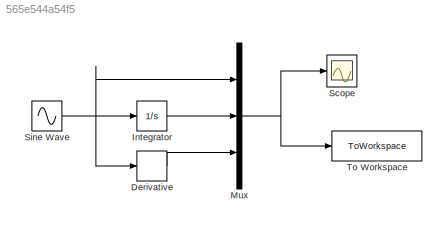
MODEL slx_565e544a54f5
KIND model
CONFIG AbsTol = auto
CONFIG EnableMultiTasking = off
CONFIG FixedStep = auto
CONFIG MaxStep = auto
CONFIG MinStep = auto
CONFIG RelTol = 1e-3
CONFIG SampleTimeConstraint = Unconstrained
CONFIG SolverName = VariableStepAuto
CONFIG StartTime = 0.0
CONFIG StopTime = 20
BLOCK [Derivative] Derivative
BLOCK [Integrator] Integrator
BLOCK [Mux] Mux
  DisplayOption = bar
  Inputs = 3
BLOCK [Scope] Scope
  Floating = off
  NumInputPorts = 1
  ScopeSpecificationString = Simulink.scopes.TimeScopeBlockCfg('CurrentConfiguration', extmgr.ConfigurationSet(extmgr.Configuration('Core','General UI',true),extmgr.Configuration('Core','Source UI',true),extmgr.Configuration('Sources','WiredSimulink',true),extmgr.Configuration('Visuals','Time Domain',true,'SerializedDisplays',{struct('MinYLimReal','-1.58748','MaxYLimReal','1.93778','YLabelReal','','MinYLimMag','0.00000','MaxY...<+1320ch>
BLOCK [Sin] Sine Wave
  Frequency = 1.257
  SampleTime = 0
BLOCK [ToWorkspace] To Workspace
  FixptAsFi = on
  MaxDataPoints = inf
  SampleTime = -1
  VariableName = simoutA1
LINE Derivative:1 -> Mux:3
LINE Integrator:1 -> Mux:2
NET Mux:1 -> Scope:1, To Workspace:1
NET Sine Wave:1 -> Derivative:1, Integrator:1, Mux:1
note: NET lines group one-source signal fan-out (src -> all destinations, sorted); 1:1 wires keep LINE
